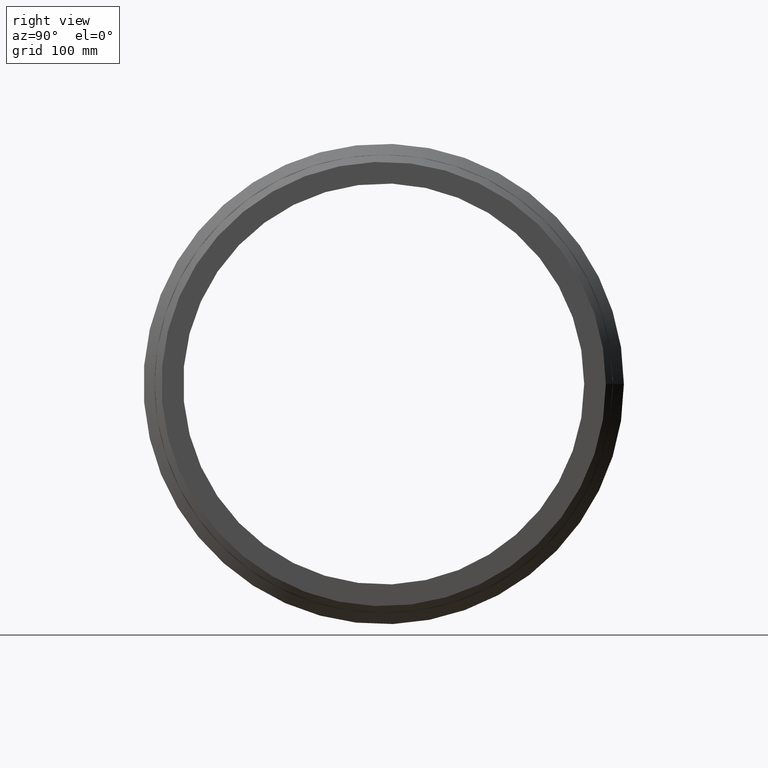
[diagram: clean part render]
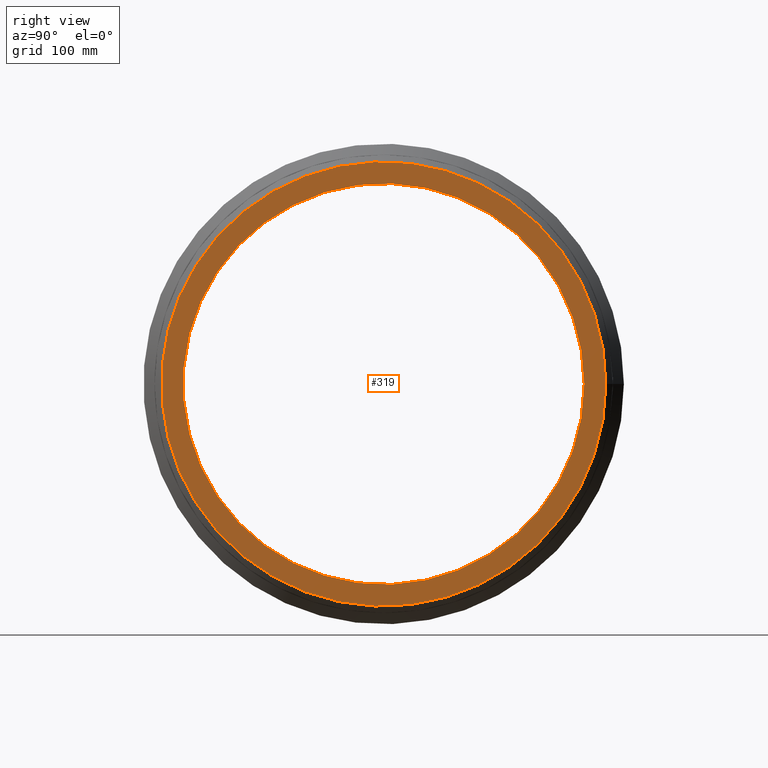
[diagram: same view with one face highlighted and labeled with its STEP entity id]
A machine part, right view. The second image highlights one B-rep face of the part: STEP entity #319.
In plain terms, the highlighted planar face has unit normal (1, 0, 0).
Its self-contained STEP definition (entity closure, byte-faithful):
#47=FACE_BOUND('',#140,.T.);
#89=FACE_OUTER_BOUND('',#139,.T.);
#139=EDGE_LOOP('',(#281));
#140=EDGE_LOOP('',(#282));
#167=CIRCLE('',#373,249.29);
#168=CIRCLE('',#375,225.);
#193=VERTEX_POINT('',#636);
#194=VERTEX_POINT('',#639);
#223=EDGE_CURVE('',#193,#193,#167,.T.);
#224=EDGE_CURVE('',#194,#194,#168,.T.);
#281=ORIENTED_EDGE('',*,*,#223,.T.);
#282=ORIENTED_EDGE('',*,*,#224,.F.);
#292=PLANE('',#374);
#319=ADVANCED_FACE('',(#89,#47),#292,.T.);
#373=AXIS2_PLACEMENT_3D('',#637,#479,#480);
#374=AXIS2_PLACEMENT_3D('',#638,#481,#482);
#375=AXIS2_PLACEMENT_3D('',#640,#483,#484);
#479=DIRECTION('center_axis',(1.,1.83697019872103E-16,0.));
#480=DIRECTION('ref_axis',(0.,0.,-1.));
#481=DIRECTION('center_axis',(1.,1.83697019872103E-16,0.));
#482=DIRECTION('ref_axis',(0.,0.,-1.));
#483=DIRECTION('center_axis',(1.,1.83697019872103E-16,0.));
#484=DIRECTION('ref_axis',(0.,0.,-1.));
#636=CARTESIAN_POINT('',(153.,249.29,0.));
#637=CARTESIAN_POINT('Origin',(153.,5.62112880808635E-14,0.));
#638=CARTESIAN_POINT('Origin',(153.,225.,0.));
#639=CARTESIAN_POINT('',(153.,225.,0.));
#640=CARTESIAN_POINT('Origin',(153.,5.62112880808635E-14,0.));